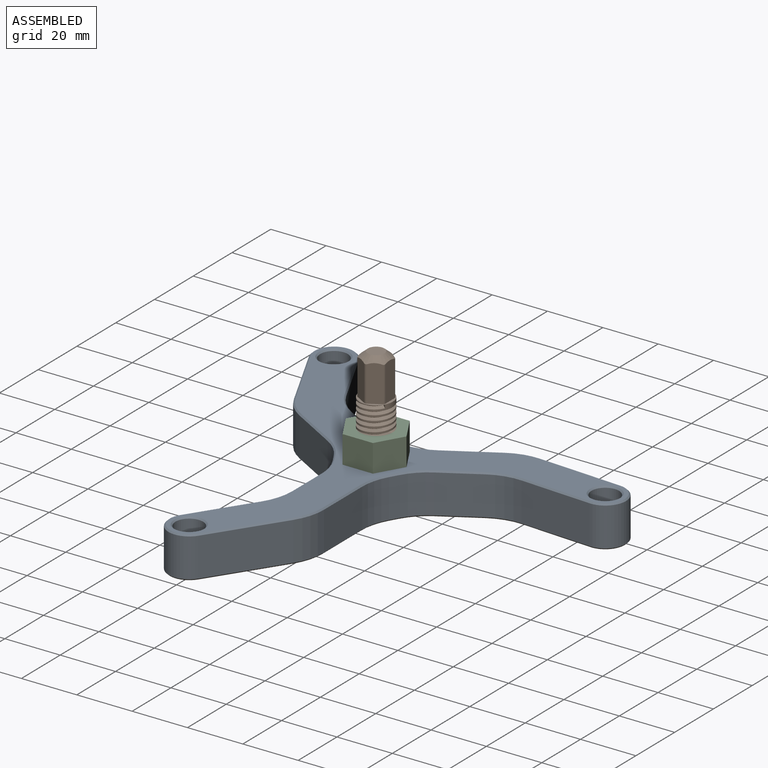
[diagram: assembled view]
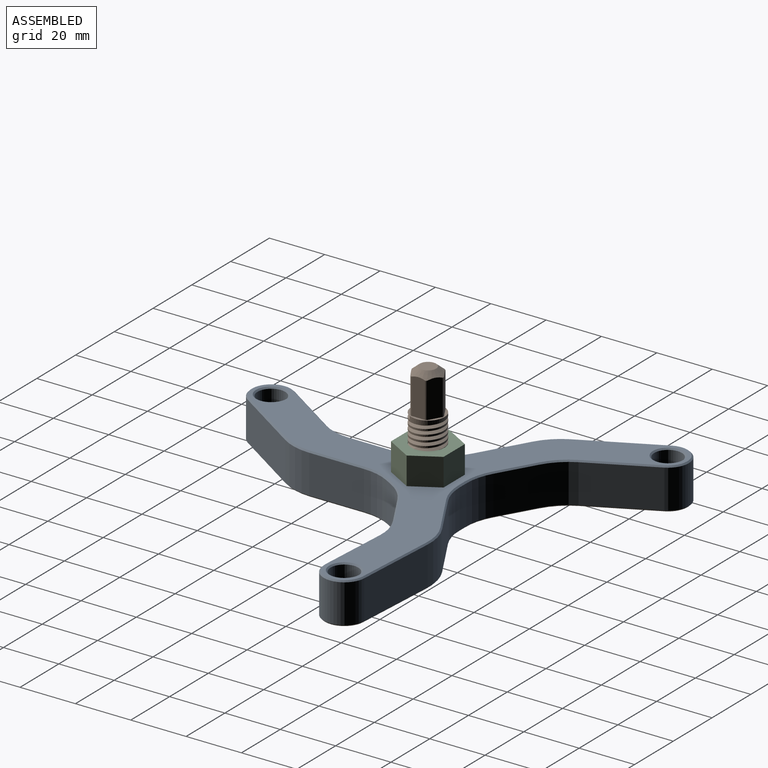
[diagram: assembled view, second angle]
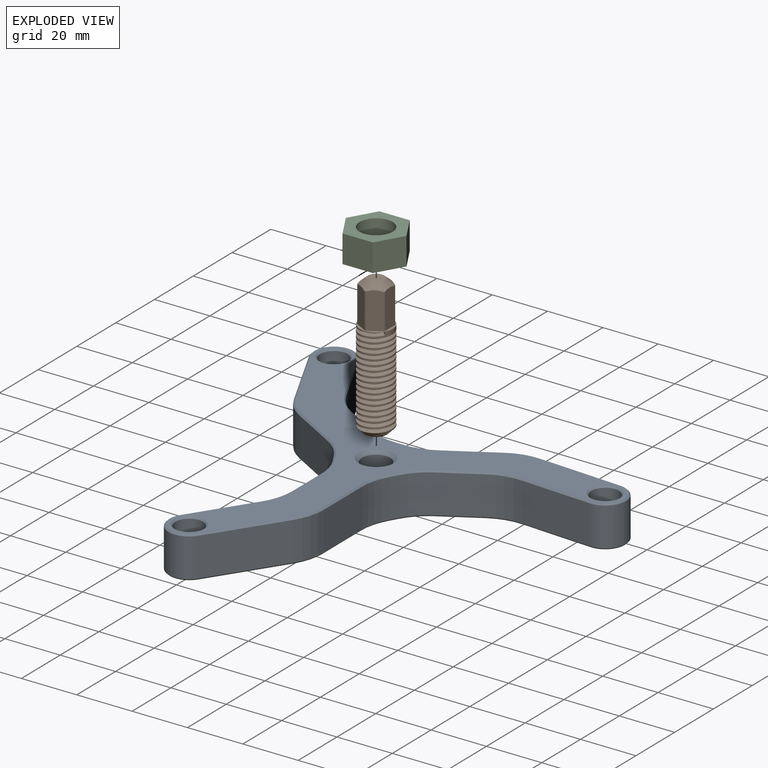
[diagram: exploded view]
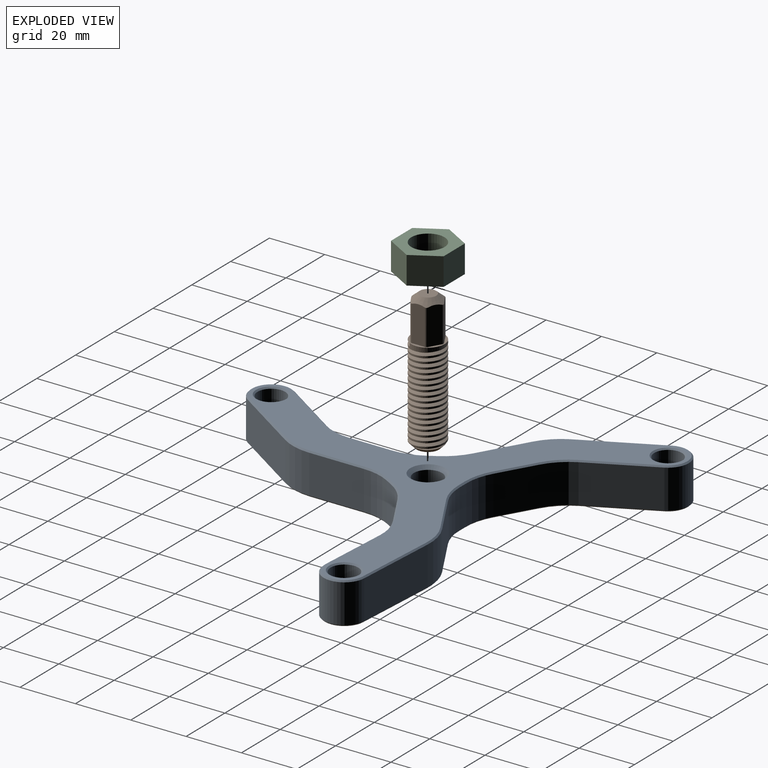
[diagram: exploded view, second angle]
ASSEMBLY  parts=3 mates=2
PART A: 110 faces, bbox 135.7x135.8x15 mm
  f0: cylinder r=2.75mm len=7.5mm, axis (0,0,-1), area 129.6mm2, adj f22,f102
  f1: cylinder r=2.75mm len=7.5mm, axis (0,0,-1), area 129.6mm2, adj f22,f106
  f2: cylinder r=2.75mm len=7.5mm, axis (0,0,-1), area 129.6mm2, adj f22,f104
  f3: plane 17.11x14mm, normal (-0.5,0.87,0), area 276.5mm2, adj f31,f39,f50,f75
  f4: plane 14x3.43mm, normal (0,1,0), area 48.1mm2, adj f34,f39,f54,f79
  f5: plane 14x13.2mm, normal (0.5,0.87,0), area 213.4mm2, adj f34,f40,f58,f83
  f6: plane 22.98x14mm, normal (0.89,0.45,0), area 359.7mm2, adj f7,f40,f62,f87
  f7: cylinder r=7.5mm len=14.21mm, axis (0,0,-1), area 329.9mm2, adj f6,f8,f64,f89
  f8: plane 27.02x14mm, normal (-0.89,-0.45,0), area 422.8mm2, adj f7,f41,f66,f91
  f9: plane 17.11x14mm, normal (-0.5,-0.87,0), area 276.5mm2, adj f35,f41,f70,f95
  f10: plane 14x2.97mm, normal (-0.87,-0.5,0), area 48.1mm2, adj f35,f36,f69,f99
  f11: plane 15.24x14mm, normal (-1,0,0), area 213.4mm2, adj f32,f36,f65,f100
  f12: plane 21.44x14.16mm, normal (-0.83,0.55,0), area 359.7mm2, adj f13,f32,f61,f96
  f13: cylinder r=7.5mm len=14mm, axis (0,0,-1), area 329.9mm2, adj f12,f14,f59,f94
  f14: plane 25.2x16.65mm, normal (0.83,-0.55,0), area 422.8mm2, adj f13,f33,f57,f92
  f15: plane 19.75x14mm, normal (1,0,0), area 276.5mm2, adj f33,f37,f53,f88
  f16: plane 14x2.97mm, normal (0.87,-0.5,0), area 48.1mm2, adj f37,f38,f49,f84
  f17: plane 14x13.2mm, normal (0.5,-0.87,0), area 213.4mm2, adj f30,f38,f45,f80
  f18: plane 25.65x14mm, normal (-0.06,-1,0), area 359.7mm2, adj f19,f30,f42,f76
  f19: cylinder r=7.5mm len=14.99mm, axis (0,0,-1), area 329.9mm2, adj f18,f20,f44,f74
  f20: plane 30.15x14mm, normal (0.06,1,0), area 422.8mm2, adj f19,f31,f46,f72
  f21: plane 134.76x134.72mm, normal (0,0,1), area 3004.5mm2, adj f72,f73,f74,f75,f76,f77,f78,f79
  f22: plane 134.76x134.72mm, normal (0,0,-1), area 3218.3mm2, adj f0,f1,f2,f42,f43,f44,f45,f46
  f23: cylinder r=5mm len=10mm, axis (0,0,1), area 204.2mm2, adj f24,f107
  f24: plane 10x10mm, normal (0,0,1), area 45.4mm2, adj f23,f106
  f25: cylinder r=5mm len=10mm, axis (0,0,1), area 204.2mm2, adj f26,f103
  f26: plane 10x10mm, normal (0,0,1), area 45.4mm2, adj f25,f102
  f27: cylinder r=5mm len=10mm, axis (0,0,1), area 204.2mm2, adj f28,f105
  f28: plane 10x10mm, normal (0,0,1), area 45.4mm2, adj f27,f104
  f29: cylinder r=5.1mm len=12.5mm, axis (0,0,1), area 400.6mm2, adj f108,f109
  f30: cylinder r=20mm len=14mm, axis (0,0,-1), area 163.5mm2, adj f17,f18,f43,f78
  f31: cylinder r=20mm len=14mm, axis (0,0,1), area 163.5mm2, adj f3,f20,f48,f73
  f32: cylinder r=20mm len=14mm, axis (0,0,-1), area 163.5mm2, adj f11,f12,f63,f98
  f33: cylinder r=20mm len=14mm, axis (0,0,1), area 163.5mm2, adj f14,f15,f55,f90
  f34: cylinder r=20mm len=14mm, axis (0,0,-1), area 146.6mm2, adj f4,f5,f56,f81
  f35: cylinder r=20mm len=14mm, axis (0,0,-1), area 146.6mm2, adj f9,f10,f71,f97
  f36: cylinder r=20mm len=14mm, axis (0,0,1), area 146.6mm2, adj f10,f11,f67,f101
  f37: cylinder r=20mm len=14mm, axis (0,0,1), area 146.6mm2, adj f15,f16,f51,f86
  f38: cylinder r=20mm len=14mm, axis (0,0,-1), area 146.6mm2, adj f16,f17,f47,f82
  f39: cylinder r=20mm len=14mm, axis (0,0,1), area 146.6mm2, adj f3,f4,f52,f77
  f40: cylinder r=20mm len=14mm, axis (0,0,-1), area 163.5mm2, adj f5,f6,f60,f85
  f41: cylinder r=20mm len=14mm, axis (0,0,1), area 163.5mm2, adj f8,f9,f68,f93
  f42: plane 25.68x2.05mm, normal (-0.04,-0.71,-0.71), area 18.2mm2, adj f18,f22,f43,f44
  f43: cone r=20.5mm half-angle=45deg, axis (0,0,-1), area 8.4mm2, adj f22,f30,f42,f45
  f44: cone r=7.5mm half-angle=45deg, axis (0,0,1), area 16.1mm2, adj f19,f22,f42,f46
  f45: plane 13.45x8.05mm, normal (0.35,-0.61,-0.71), area 10.8mm2, adj f17,f22,f43,f47
  f46: plane 30.18x2.32mm, normal (0.04,0.71,-0.71), area 21.4mm2, adj f20,f22,f44,f48
  f47: cone r=20.5mm half-angle=45deg, axis (0,0,-1), area 7.5mm2, adj f22,f38,f45,f49
  f48: cone r=19.5mm half-angle=45deg, axis (0,0,1), area 8.2mm2, adj f22,f31,f46,f50
  f49: plane 3.22x2.15mm, normal (0.61,-0.35,-0.71), area 2.4mm2, adj f16,f22,f47,f51
  f50: plane 17.36x10.31mm, normal (-0.35,0.61,-0.71), area 14mm2, adj f3,f22,f48,f52
  f51: cone r=20.5mm half-angle=45deg, axis (0,0,-1), area 7.5mm2, adj f22,f37,f49,f53
  f52: cone r=20.5mm half-angle=45deg, axis (0,0,-1), area 7.5mm2, adj f22,f39,f50,f54
  f53: plane 19.75x0.5mm, normal (0.71,0,-0.71), area 14mm2, adj f15,f22,f51,f55
  f54: plane 3.43x0.5mm, normal (0,0.71,-0.71), area 2.4mm2, adj f4,f22,f52,f56
  f55: cone r=19.5mm half-angle=45deg, axis (0,0,1), area 8.2mm2, adj f22,f33,f53,f57
  f56: cone r=20.5mm half-angle=45deg, axis (0,0,-1), area 7.5mm2, adj f22,f34,f54,f58
  f57: plane 25.47x17.07mm, normal (0.59,-0.39,-0.71), area 21.4mm2, adj f14,f22,f55,f59
  f58: plane 13.45x8.05mm, normal (0.35,0.61,-0.71), area 10.8mm2, adj f5,f22,f56,f60
  f59: cone r=7.5mm half-angle=45deg, axis (0,0,1), area 16.1mm2, adj f13,f22,f57,f61
  f60: cone r=20.5mm half-angle=45deg, axis (0,0,-1), area 8.4mm2, adj f22,f40,f58,f62
  f61: plane 21.71x14.58mm, normal (-0.59,0.39,-0.71), area 18.2mm2, adj f12,f22,f59,f63
  f62: plane 23.21x11.93mm, normal (0.63,0.32,-0.71), area 18.2mm2, adj f6,f22,f60,f64
  f63: cone r=20.5mm half-angle=45deg, axis (0,0,-1), area 8.4mm2, adj f22,f32,f61,f65
  f64: cone r=7.5mm half-angle=45deg, axis (0,0,1), area 16.1mm2, adj f7,f22,f62,f66
  f65: plane 15.24x0.5mm, normal (-0.71,0,-0.71), area 10.8mm2, adj f11,f22,f63,f67
  f66: plane 27.24x13.94mm, normal (-0.63,-0.32,-0.71), area 21.4mm2, adj f8,f22,f64,f68
  f67: cone r=20.5mm half-angle=45deg, axis (0,0,-1), area 7.5mm2, adj f22,f36,f65,f69
  f68: cone r=19.5mm half-angle=45deg, axis (0,0,1), area 8.2mm2, adj f22,f41,f66,f70
  f69: plane 3.22x2.15mm, normal (-0.61,-0.35,-0.71), area 2.4mm2, adj f10,f22,f67,f71
  f70: plane 17.36x10.31mm, normal (-0.35,-0.61,-0.71), area 14mm2, adj f9,f22,f68,f71
  f71: cone r=20.5mm half-angle=45deg, axis (0,0,-1), area 7.5mm2, adj f22,f35,f69,f70
  f72: plane 30.18x2.32mm, normal (0.04,0.71,0.71), area 21.4mm2, adj f20,f21,f73,f74
  f73: cone r=19.5mm half-angle=45deg, axis (0,0,-1), area 8.2mm2, adj f21,f31,f72,f75
  f74: cone r=7mm half-angle=45deg, axis (0,0,-1), area 16.1mm2, adj f19,f21,f72,f76
  f75: plane 17.36x10.31mm, normal (-0.35,0.61,0.71), area 14mm2, adj f3,f21,f73,f77
  f76: plane 25.68x2.05mm, normal (-0.04,-0.71,0.71), area 18.2mm2, adj f18,f21,f74,f78
  f77: cone r=20.5mm half-angle=45deg, axis (0,0,1), area 7.5mm2, adj f21,f39,f75,f79
  f78: cone r=20.5mm half-angle=45deg, axis (0,0,1), area 8.4mm2, adj f21,f30,f76,f80
  f79: plane 3.43x0.5mm, normal (0,0.71,0.71), area 2.4mm2, adj f4,f21,f77,f81
  f80: plane 13.45x8.05mm, normal (0.35,-0.61,0.71), area 10.8mm2, adj f17,f21,f78,f82
  f81: cone r=20.5mm half-angle=45deg, axis (0,0,1), area 7.5mm2, adj f21,f34,f79,f83
  f82: cone r=20.5mm half-angle=45deg, axis (0,0,1), area 7.5mm2, adj f21,f38,f80,f84
  f83: plane 13.45x8.05mm, normal (0.35,0.61,0.71), area 10.8mm2, adj f5,f21,f81,f85
  f84: plane 3.22x2.15mm, normal (0.61,-0.35,0.71), area 2.4mm2, adj f16,f21,f82,f86
  f85: cone r=20.5mm half-angle=45deg, axis (0,0,1), area 8.4mm2, adj f21,f40,f83,f87
  f86: cone r=20.5mm half-angle=45deg, axis (0,0,1), area 7.5mm2, adj f21,f37,f84,f88
  f87: plane 23.21x11.93mm, normal (0.63,0.32,0.71), area 18.2mm2, adj f6,f21,f85,f89
  f88: plane 19.75x0.5mm, normal (0.71,0,0.71), area 14mm2, adj f15,f21,f86,f90
  f89: cone r=7mm half-angle=45deg, axis (0,0,-1), area 16.1mm2, adj f7,f21,f87,f91
  f90: cone r=19.5mm half-angle=45deg, axis (0,0,-1), area 8.2mm2, adj f21,f33,f88,f92
  f91: plane 27.24x13.94mm, normal (-0.63,-0.32,0.71), area 21.4mm2, adj f8,f21,f89,f93
  f92: plane 25.47x17.07mm, normal (0.59,-0.39,0.71), area 21.4mm2, adj f14,f21,f90,f94
  f93: cone r=19.5mm half-angle=45deg, axis (0,0,-1), area 8.2mm2, adj f21,f41,f91,f95
  f94: cone r=7mm half-angle=45deg, axis (0,0,-1), area 16.1mm2, adj f13,f21,f92,f96
  f95: plane 17.36x10.31mm, normal (-0.35,-0.61,0.71), area 14mm2, adj f9,f21,f93,f97
  f96: plane 21.71x14.58mm, normal (-0.59,0.39,0.71), area 18.2mm2, adj f12,f21,f94,f98
  f97: cone r=20.5mm half-angle=45deg, axis (0,0,1), area 7.5mm2, adj f21,f35,f95,f99
  f98: cone r=20.5mm half-angle=45deg, axis (0,0,1), area 8.4mm2, adj f21,f32,f96,f100
  f99: plane 3.22x2.15mm, normal (-0.61,-0.35,0.71), area 2.4mm2, adj f10,f21,f97,f101
  f100: plane 15.24x0.5mm, normal (-0.71,0,0.71), area 10.8mm2, adj f11,f21,f98,f101
  f101: cone r=20.5mm half-angle=45deg, axis (0,0,1), area 7.5mm2, adj f21,f36,f99,f100
  f102: cone r=2.75mm half-angle=45deg, axis (0,0,1), area 13.3mm2, adj f0,f26
  f103: cone r=5mm half-angle=45deg, axis (0,0,1), area 23.3mm2, adj f21,f25
  f104: cone r=2.75mm half-angle=45deg, axis (0,0,1), area 13.3mm2, adj f2,f28
  f105: cone r=5mm half-angle=45deg, axis (0,0,1), area 23.3mm2, adj f21,f27
  f106: cone r=2.75mm half-angle=45deg, axis (0,0,1), area 13.3mm2, adj f1,f24
  f107: cone r=5mm half-angle=45deg, axis (0,0,1), area 23.3mm2, adj f21,f23
  f108: cone r=6.35mm half-angle=45deg, axis (0,0,-1), area 63.6mm2, adj f22,f29
  f109: cone r=5.1mm half-angle=45deg, axis (0,0,1), area 63.6mm2, adj f21,f29
PART B: 39 faces, bbox 12.1x14x50 mm
  f0: cylinder r=6mm len=12mm, axis (0,0,1), area 58.4mm2, adj f1,f19,f28,f29,f30
  f1: cylinder r=6mm len=12mm, axis (0,0,1), area 24.6mm2, adj f0,f2,f29,f30
  f2: cylinder r=6mm len=12mm, axis (0,0,1), area 24.6mm2, adj f1,f3,f29,f30
  f3: cylinder r=6mm len=12mm, axis (0,0,1), area 24.6mm2, adj f2,f4,f29,f30
  f4: cylinder r=6mm len=12mm, axis (0,0,1), area 24.6mm2, adj f3,f5,f29,f30
  f5: cylinder r=6mm len=12mm, axis (0,0,1), area 24.6mm2, adj f4,f6,f29,f30
  f6: cylinder r=6mm len=12mm, axis (0,0,1), area 24.6mm2, adj f5,f7,f29,f30
  f7: cylinder r=6mm len=12mm, axis (0,0,1), area 24.6mm2, adj f6,f8,f29,f30
  f8: cylinder r=6mm len=12mm, axis (0,0,1), area 24.6mm2, adj f7,f9,f29,f30
  f9: cylinder r=6mm len=12mm, axis (0,0,1), area 24.6mm2, adj f8,f10,f29,f30
  f10: cylinder r=6mm len=12mm, axis (0,0,1), area 24.6mm2, adj f9,f11,f29,f30
  f11: cylinder r=6mm len=12mm, axis (0,0,1), area 24.6mm2, adj f10,f12,f29,f30
  f12: cylinder r=6mm len=12mm, axis (0,0,1), area 24.6mm2, adj f11,f13,f29,f30
  f13: cylinder r=6mm len=12mm, axis (0,0,1), area 24.5mm2, adj f12,f14,f29,f30
  f14: cylinder r=6mm len=12mm, axis (0,0,1), area 24.6mm2, adj f13,f15,f29,f30
  f15: cylinder r=6mm len=12mm, axis (0,0,1), area 24.6mm2, adj f14,f16,f29,f30
  f16: cylinder r=6mm len=12mm, axis (0,0,1), area 24.3mm2, adj f15,f17,f29,f30,f32
  f17: cylinder r=6mm len=6.26mm, axis (0,0,1), area 2.3mm2, adj f16,f30,f31
  f18: plane 8x8mm, normal (0,0,-1), area 50.3mm2, adj f31
  f19: plane 12x12mm, normal (0,0,1), area 26.8mm2, adj f0,f20,f21,f22,f23,f24,f25,f33
  f20: plane 13.33x4.63mm, normal (1,0,0), area 60.9mm2, adj f19,f27,f33,f38
  f21: plane 13.33x4.01mm, normal (0.5,-0.87,0), area 60.9mm2, adj f19,f27,f33,f34
  f22: plane 13.33x4.01mm, normal (-0.5,-0.87,0), area 60.9mm2, adj f19,f27,f34,f35
  f23: plane 13.33x4.63mm, normal (-1,0,0), area 60.9mm2, adj f19,f27,f35,f36
  f24: plane 13.33x4.01mm, normal (-0.5,0.87,0), area 60.9mm2, adj f19,f27,f36,f37
  f25: plane 13.33x4.01mm, normal (0.5,0.87,0), area 60.9mm2, adj f19,f27,f37,f38
  f26: plane 6x6mm, normal (0,0,1), area 28.3mm2, adj f27
  f27: cone r=3mm half-angle=50deg, axis (0,0,-1), area 75.1mm2, adj f20,f21,f22,f23,f24,f25,f26,f33
  f28: plane 1.2x1mm, normal (-0.49,-0.87,0), area 0.7mm2, adj f0,f29,f30
  f29: bspline ~34.54x13.97mm, area 795.4mm2, adj f0,f1,f2,f3,f4,f5,f6,f7
  f30: bspline ~34.54x13.97mm, area 781.8mm2, adj f0,f1,f2,f3,f4,f5,f6,f7
  f31: cone r=6mm half-angle=45deg, axis (0,0,1), area 69.3mm2, adj f17,f18,f29,f30,f32
  f32: cone r=6mm half-angle=45deg, axis (0,0,1), area 0.9mm2, adj f16,f29,f31
  f33: cylinder r=1mm len=12.9mm, axis (0,0,1), area 13.5mm2, adj f19,f20,f21,f27
  f34: cylinder r=1mm len=12.9mm, axis (0,0,1), area 13.5mm2, adj f19,f21,f22,f27
  f35: cylinder r=1mm len=12.9mm, axis (0,0,1), area 13.5mm2, adj f19,f22,f23,f27
  f36: cylinder r=1mm len=12.9mm, axis (0,0,1), area 13.5mm2, adj f19,f23,f24,f27
  f37: cylinder r=1mm len=12.9mm, axis (0,0,1), area 13.5mm2, adj f19,f24,f25,f27
  f38: cylinder r=1mm len=12.9mm, axis (0,0,1), area 13.5mm2, adj f19,f20,f25,f27
PART C: 9 faces, bbox 21.9x19x10 mm
  f0: plane 10.97x10mm, normal (0,-1,0), area 109.7mm2, adj f1,f6,f7,f8
  f1: plane 10x9.5mm, normal (0.87,-0.5,0), area 109.7mm2, adj f0,f2,f7,f8
  f2: plane 10x9.5mm, normal (0.87,0.5,0), area 109.7mm2, adj f1,f3,f7,f8
  f3: plane 10.97x10mm, normal (0,1,0), area 109.7mm2, adj f2,f4,f7,f8
  f4: plane 10x9.5mm, normal (-0.87,0.5,0), area 109.7mm2, adj f3,f6,f7,f8
  f5: cylinder r=6mm len=12mm, axis (0,0,-1), area 377mm2, adj f7,f8
  f6: plane 10x9.5mm, normal (-0.87,-0.5,0), area 109.7mm2, adj f0,f4,f7,f8
  f7: plane 21.94x19mm, normal (0,0,1), area 199.5mm2, adj f0,f1,f2,f3,f4,f5,f6
  f8: plane 21.94x19mm, normal (0,0,-1), area 199.5mm2, adj f0,f1,f2,f3,f4,f5,f6
PLACE A t=(-0.4,-4.94,-31.15)mm fixed
PLACE B t=(-0.4,-4.94,-31.15)mm
PLACE C t=(-0.4,-4.94,-16.15)mm
MATE cylindrical C.f5 <-> A.f29  axis (0,0,-1) through (-0.4,-4.94,-16.15)mm
MATE cylindrical B.f0 <-> A.f29  axis (0,0,-1) through (-0.4,-4.94,-31.15)mm
